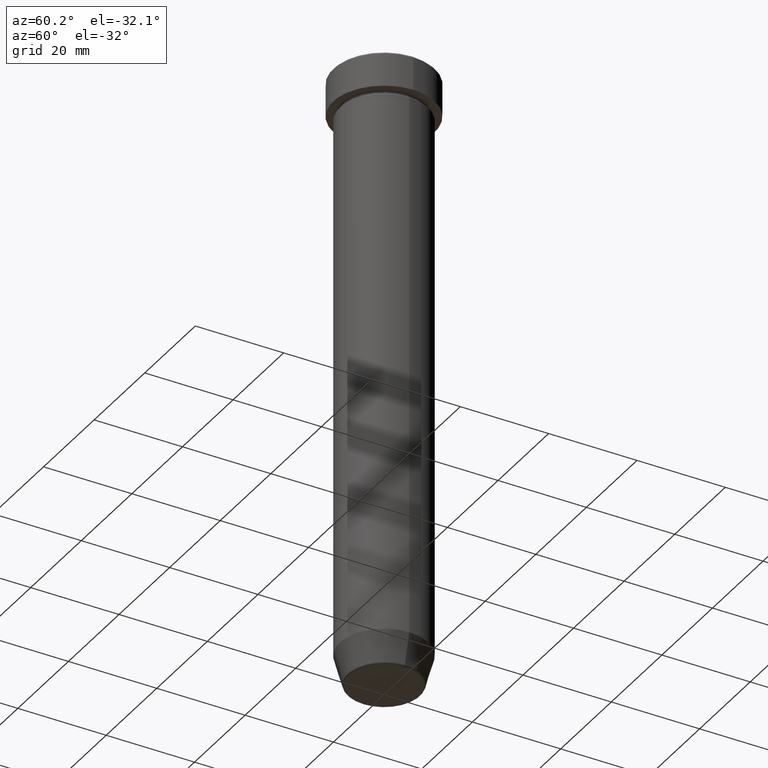
[diagram: clean part render]
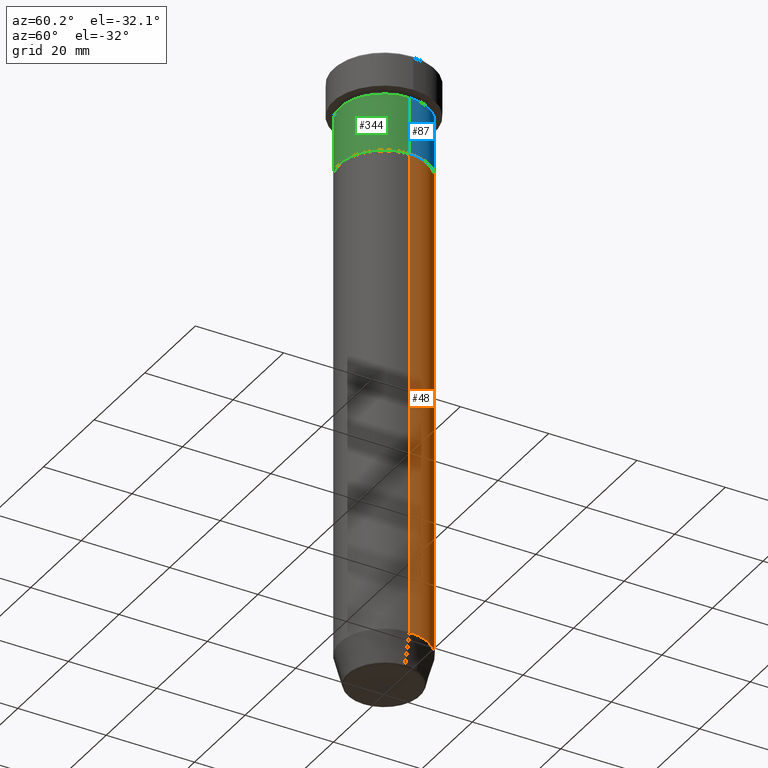
[diagram: same view with three faces highlighted in distinct colors, each labeled with its STEP entity id]
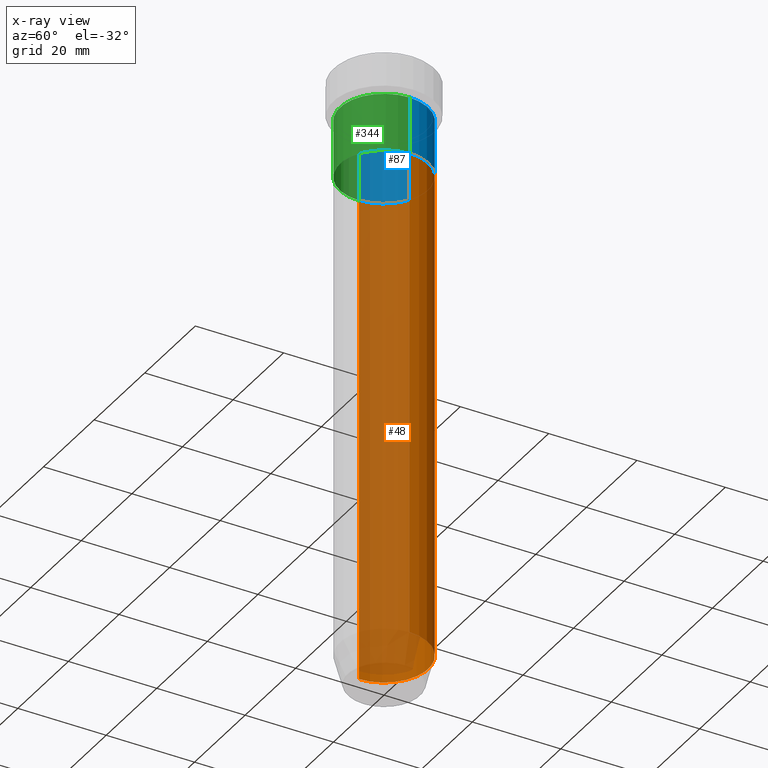
[diagram: x-ray of the same camera — body ghosted, the three highlighted faces saturated]
A machine part, auxiliary view with three faces highlighted in distinct colors.
The next image is the same camera in x-ray (body ghosted, the three faces saturated) — at least one of them is partly hidden behind the body in this view.
Their STEP definitions:

[orange] entity #48 — the highlighted cylindrical surface (partial cylindrical patch) has radius 10 mm, axis along (-0, -0, 1).
#9 = CARTESIAN_POINT ( 'NONE',  ( -9.999999999999998224, 1.224646799147353059E-15, 0.000000000000000000 ) ) ;
#20 = VERTEX_POINT ( 'NONE', #364 ) ;
#48 = ADVANCED_FACE ( 'NONE', ( #354 ), #570, .T. ) ;
#61 = AXIS2_PLACEMENT_3D ( 'NONE', #443, #531, #298 ) ;
#77 = CARTESIAN_POINT ( 'NONE',  ( 9.999999999999998224, 0.000000000000000000, 0.000000000000000000 ) ) ;
#96 = EDGE_CURVE ( 'NONE', #261, #493, #479, .T. ) ;
#97 = CIRCLE ( 'NONE', #284, 9.999999999999998224 ) ;
#100 = CARTESIAN_POINT ( 'NONE',  ( 0.000000000000000000, 0.000000000000000000, -132.9999999999999432 ) ) ;
#118 = DIRECTION ( 'NONE',  ( -0.000000000000000000, -0.000000000000000000, 1.000000000000000000 ) ) ;
#146 = LINE ( 'NONE', #9, #191 ) ;
#157 = VERTEX_POINT ( 'NONE', #342 ) ;
#173 = CARTESIAN_POINT ( 'NONE',  ( 0.000000000000000000, 0.000000000000000000, -22.00000000000000000 ) ) ;
#179 = CARTESIAN_POINT ( 'NONE',  ( 9.999999999999998224, 0.000000000000000000, -132.9999999999999432 ) ) ;
#180 = ORIENTED_EDGE ( 'NONE', *, *, #472, .T. ) ;
#191 = VECTOR ( 'NONE', #194, 1000.000000000000000 ) ;
#192 = EDGE_CURVE ( 'NONE', #493, #20, #441, .T. ) ;
#194 = DIRECTION ( 'NONE',  ( -0.000000000000000000, -0.000000000000000000, 1.000000000000000000 ) ) ;
#258 = ORIENTED_EDGE ( 'NONE', *, *, #358, .T. ) ;
#261 = VERTEX_POINT ( 'NONE', #179 ) ;
#281 = DIRECTION ( 'NONE',  ( 1.000000000000000000, 0.000000000000000000, 0.000000000000000000 ) ) ;
#284 = AXIS2_PLACEMENT_3D ( 'NONE', #100, #559, #281 ) ;
#298 = DIRECTION ( 'NONE',  ( 1.000000000000000000, 0.000000000000000000, 0.000000000000000000 ) ) ;
#342 = CARTESIAN_POINT ( 'NONE',  ( -9.999999999999998224, 1.224646799147353059E-15, -132.9999999999999432 ) ) ;
#354 = FACE_OUTER_BOUND ( 'NONE', #444, .T. ) ;
#358 = EDGE_CURVE ( 'NONE', #261, #157, #97, .T. ) ;
#364 = CARTESIAN_POINT ( 'NONE',  ( -10.00000000000000000, 1.224646799147353256E-15, -22.00000000000000000 ) ) ;
#368 = AXIS2_PLACEMENT_3D ( 'NONE', #173, #439, #592 ) ;
#438 = ORIENTED_EDGE ( 'NONE', *, *, #96, .F. ) ;
#439 = DIRECTION ( 'NONE',  ( -0.000000000000000000, -0.000000000000000000, 1.000000000000000000 ) ) ;
#441 = CIRCLE ( 'NONE', #368, 10.00000000000000000 ) ;
#443 = CARTESIAN_POINT ( 'NONE',  ( 0.000000000000000000, 0.000000000000000000, 0.000000000000000000 ) ) ;
#444 = EDGE_LOOP ( 'NONE', ( #258, #180, #485, #438 ) ) ;
#472 = EDGE_CURVE ( 'NONE', #157, #20, #146, .T. ) ;
#479 = LINE ( 'NONE', #77, #519 ) ;
#485 = ORIENTED_EDGE ( 'NONE', *, *, #192, .F. ) ;
#493 = VERTEX_POINT ( 'NONE', #515 ) ;
#515 = CARTESIAN_POINT ( 'NONE',  ( 10.00000000000000000, 0.000000000000000000, -22.00000000000000000 ) ) ;
#519 = VECTOR ( 'NONE', #118, 1000.000000000000000 ) ;
#531 = DIRECTION ( 'NONE',  ( -0.000000000000000000, -0.000000000000000000, 1.000000000000000000 ) ) ;
#559 = DIRECTION ( 'NONE',  ( -0.000000000000000000, -0.000000000000000000, 1.000000000000000000 ) ) ;
#570 = CYLINDRICAL_SURFACE ( 'NONE', #61, 9.999999999999998224 ) ;
#592 = DIRECTION ( 'NONE',  ( 1.000000000000000000, 0.000000000000000000, 0.000000000000000000 ) ) ;

[blue] entity #87 — the highlighted cylindrical surface (partial cylindrical patch) has radius 10 mm, axis along (-0, -0, 1).
#10 = DIRECTION ( 'NONE',  ( 1.000000000000000000, 0.000000000000000000, 0.000000000000000000 ) ) ;
#13 = CARTESIAN_POINT ( 'NONE',  ( 0.000000000000000000, 0.000000000000000000, -9.000000000000001776 ) ) ;
#19 = DIRECTION ( 'NONE',  ( -0.000000000000000000, -0.000000000000000000, 1.000000000000000000 ) ) ;
#22 = CIRCLE ( 'NONE', #523, 10.00000000000000000 ) ;
#33 = AXIS2_PLACEMENT_3D ( 'NONE', #242, #102, #241 ) ;
#85 = ORIENTED_EDGE ( 'NONE', *, *, #431, .T. ) ;
#87 = ADVANCED_FACE ( 'NONE', ( #202 ), #539, .T. ) ;
#102 = DIRECTION ( 'NONE',  ( -0.000000000000000000, -0.000000000000000000, 1.000000000000000000 ) ) ;
#103 = EDGE_CURVE ( 'NONE', #526, #208, #205, .T. ) ;
#106 = DIRECTION ( 'NONE',  ( -0.000000000000000000, -0.000000000000000000, 1.000000000000000000 ) ) ;
#113 = CARTESIAN_POINT ( 'NONE',  ( 10.00000000000000000, 0.000000000000000000, 0.000000000000000000 ) ) ;
#114 = VERTEX_POINT ( 'NONE', #116 ) ;
#116 = CARTESIAN_POINT ( 'NONE',  ( 10.00000000000000000, 0.000000000000000000, -9.000000000000001776 ) ) ;
#154 = EDGE_CURVE ( 'NONE', #200, #114, #264, .T. ) ;
#200 = VERTEX_POINT ( 'NONE', #404 ) ;
#202 = FACE_OUTER_BOUND ( 'NONE', #435, .T. ) ;
#205 = LINE ( 'NONE', #255, #246 ) ;
#208 = VERTEX_POINT ( 'NONE', #400 ) ;
#241 = DIRECTION ( 'NONE',  ( 1.000000000000000000, 0.000000000000000000, 0.000000000000000000 ) ) ;
#242 = CARTESIAN_POINT ( 'NONE',  ( 0.000000000000000000, 0.000000000000000000, -22.00000000000000000 ) ) ;
#246 = VECTOR ( 'NONE', #19, 1000.000000000000000 ) ;
#255 = CARTESIAN_POINT ( 'NONE',  ( -10.00000000000000000, 1.224646799147353256E-15, 0.000000000000000000 ) ) ;
#264 = LINE ( 'NONE', #113, #277 ) ;
#265 = ORIENTED_EDGE ( 'NONE', *, *, #154, .F. ) ;
#277 = VECTOR ( 'NONE', #587, 1000.000000000000000 ) ;
#288 = ORIENTED_EDGE ( 'NONE', *, *, #103, .T. ) ;
#296 = DIRECTION ( 'NONE',  ( -0.000000000000000000, -0.000000000000000000, 1.000000000000000000 ) ) ;
#305 = CARTESIAN_POINT ( 'NONE',  ( 0.000000000000000000, 0.000000000000000000, 0.000000000000000000 ) ) ;
#400 = CARTESIAN_POINT ( 'NONE',  ( -10.00000000000000000, 1.224646799147353256E-15, -9.000000000000001776 ) ) ;
#404 = CARTESIAN_POINT ( 'NONE',  ( 10.00000000000000000, 0.000000000000000000, -22.00000000000000000 ) ) ;
#431 = EDGE_CURVE ( 'NONE', #200, #526, #557, .T. ) ;
#435 = EDGE_LOOP ( 'NONE', ( #85, #288, #584, #265 ) ) ;
#436 = CARTESIAN_POINT ( 'NONE',  ( -10.00000000000000000, 1.224646799147353256E-15, -22.00000000000000000 ) ) ;
#502 = EDGE_CURVE ( 'NONE', #114, #208, #22, .T. ) ;
#512 = AXIS2_PLACEMENT_3D ( 'NONE', #305, #296, #583 ) ;
#523 = AXIS2_PLACEMENT_3D ( 'NONE', #13, #106, #10 ) ;
#526 = VERTEX_POINT ( 'NONE', #436 ) ;
#539 = CYLINDRICAL_SURFACE ( 'NONE', #512, 10.00000000000000000 ) ;
#557 = CIRCLE ( 'NONE', #33, 10.00000000000000000 ) ;
#583 = DIRECTION ( 'NONE',  ( 1.000000000000000000, 0.000000000000000000, 0.000000000000000000 ) ) ;
#584 = ORIENTED_EDGE ( 'NONE', *, *, #502, .F. ) ;
#587 = DIRECTION ( 'NONE',  ( -0.000000000000000000, -0.000000000000000000, 1.000000000000000000 ) ) ;

[green] entity #344 — the highlighted cylindrical surface (partial cylindrical patch) has radius 10 mm, axis along (-0, -0, 1).
#19 = DIRECTION ( 'NONE',  ( -0.000000000000000000, -0.000000000000000000, 1.000000000000000000 ) ) ;
#76 = DIRECTION ( 'NONE',  ( -0.000000000000000000, -0.000000000000000000, 1.000000000000000000 ) ) ;
#103 = EDGE_CURVE ( 'NONE', #526, #208, #205, .T. ) ;
#113 = CARTESIAN_POINT ( 'NONE',  ( 10.00000000000000000, 0.000000000000000000, 0.000000000000000000 ) ) ;
#114 = VERTEX_POINT ( 'NONE', #116 ) ;
#116 = CARTESIAN_POINT ( 'NONE',  ( 10.00000000000000000, 0.000000000000000000, -9.000000000000001776 ) ) ;
#154 = EDGE_CURVE ( 'NONE', #200, #114, #264, .T. ) ;
#181 = EDGE_CURVE ( 'NONE', #526, #200, #454, .T. ) ;
#200 = VERTEX_POINT ( 'NONE', #404 ) ;
#205 = LINE ( 'NONE', #255, #246 ) ;
#208 = VERTEX_POINT ( 'NONE', #400 ) ;
#213 = DIRECTION ( 'NONE',  ( -0.000000000000000000, -0.000000000000000000, 1.000000000000000000 ) ) ;
#229 = AXIS2_PLACEMENT_3D ( 'NONE', #393, #76, #332 ) ;
#233 = CARTESIAN_POINT ( 'NONE',  ( 0.000000000000000000, 0.000000000000000000, 0.000000000000000000 ) ) ;
#234 = EDGE_LOOP ( 'NONE', ( #564, #340, #378, #355 ) ) ;
#244 = DIRECTION ( 'NONE',  ( 1.000000000000000000, 0.000000000000000000, 0.000000000000000000 ) ) ;
#246 = VECTOR ( 'NONE', #19, 1000.000000000000000 ) ;
#255 = CARTESIAN_POINT ( 'NONE',  ( -10.00000000000000000, 1.224646799147353256E-15, 0.000000000000000000 ) ) ;
#256 = AXIS2_PLACEMENT_3D ( 'NONE', #233, #418, #244 ) ;
#264 = LINE ( 'NONE', #113, #277 ) ;
#277 = VECTOR ( 'NONE', #587, 1000.000000000000000 ) ;
#327 = AXIS2_PLACEMENT_3D ( 'NONE', #446, #213, #492 ) ;
#332 = DIRECTION ( 'NONE',  ( 1.000000000000000000, 0.000000000000000000, 0.000000000000000000 ) ) ;
#340 = ORIENTED_EDGE ( 'NONE', *, *, #181, .T. ) ;
#344 = ADVANCED_FACE ( 'NONE', ( #554 ), #507, .T. ) ;
#355 = ORIENTED_EDGE ( 'NONE', *, *, #571, .F. ) ;
#378 = ORIENTED_EDGE ( 'NONE', *, *, #154, .T. ) ;
#393 = CARTESIAN_POINT ( 'NONE',  ( 0.000000000000000000, 0.000000000000000000, -9.000000000000001776 ) ) ;
#400 = CARTESIAN_POINT ( 'NONE',  ( -10.00000000000000000, 1.224646799147353256E-15, -9.000000000000001776 ) ) ;
#404 = CARTESIAN_POINT ( 'NONE',  ( 10.00000000000000000, 0.000000000000000000, -22.00000000000000000 ) ) ;
#412 = CIRCLE ( 'NONE', #229, 10.00000000000000000 ) ;
#418 = DIRECTION ( 'NONE',  ( -0.000000000000000000, -0.000000000000000000, 1.000000000000000000 ) ) ;
#436 = CARTESIAN_POINT ( 'NONE',  ( -10.00000000000000000, 1.224646799147353256E-15, -22.00000000000000000 ) ) ;
#446 = CARTESIAN_POINT ( 'NONE',  ( 0.000000000000000000, 0.000000000000000000, -22.00000000000000000 ) ) ;
#454 = CIRCLE ( 'NONE', #327, 10.00000000000000000 ) ;
#492 = DIRECTION ( 'NONE',  ( 1.000000000000000000, 0.000000000000000000, 0.000000000000000000 ) ) ;
#507 = CYLINDRICAL_SURFACE ( 'NONE', #256, 10.00000000000000000 ) ;
#526 = VERTEX_POINT ( 'NONE', #436 ) ;
#554 = FACE_OUTER_BOUND ( 'NONE', #234, .T. ) ;
#564 = ORIENTED_EDGE ( 'NONE', *, *, #103, .F. ) ;
#571 = EDGE_CURVE ( 'NONE', #208, #114, #412, .T. ) ;
#587 = DIRECTION ( 'NONE',  ( -0.000000000000000000, -0.000000000000000000, 1.000000000000000000 ) ) ;